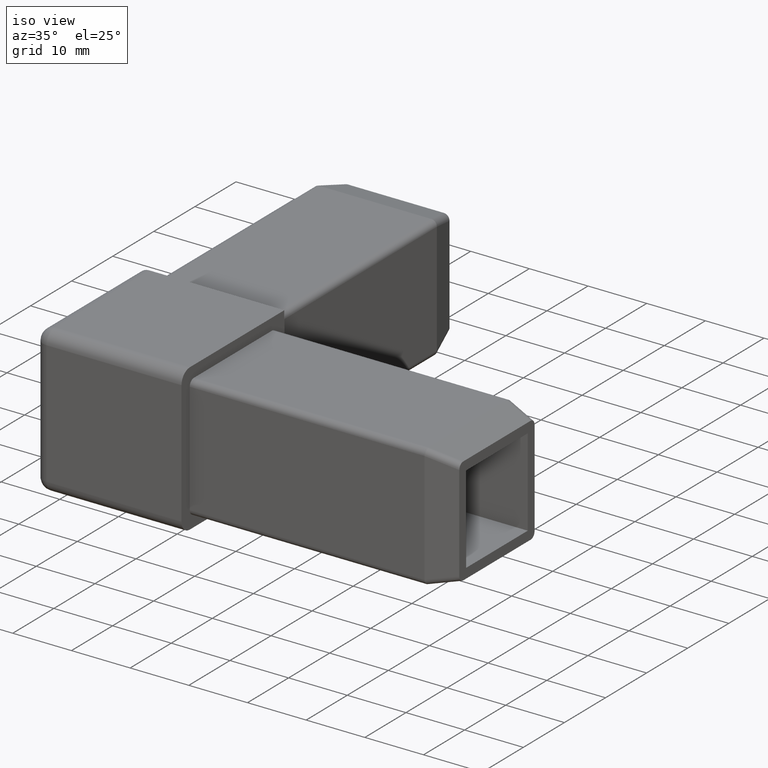
[diagram: clean part render]
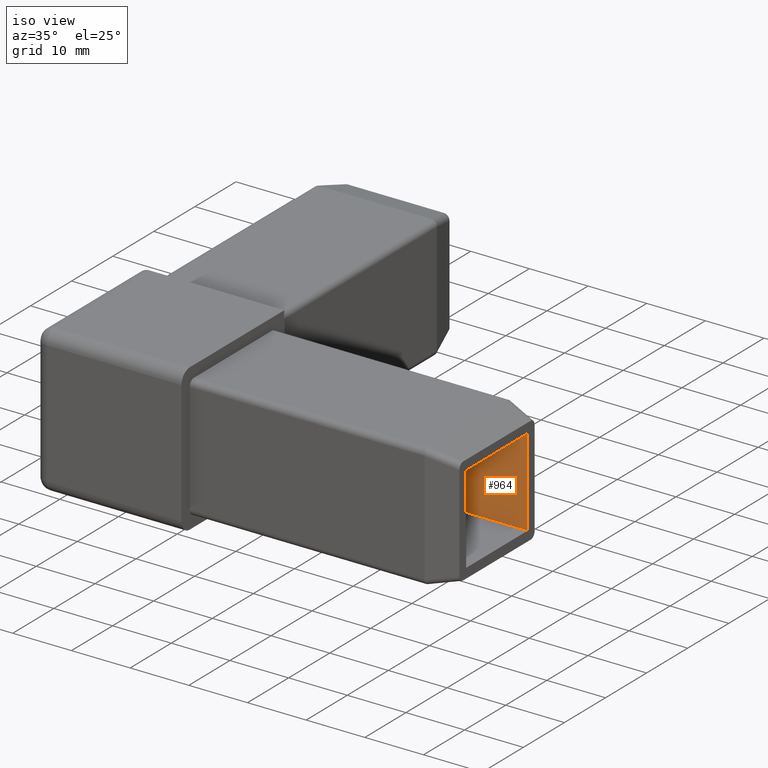
[diagram: same view with one face highlighted and labeled with its STEP entity id]
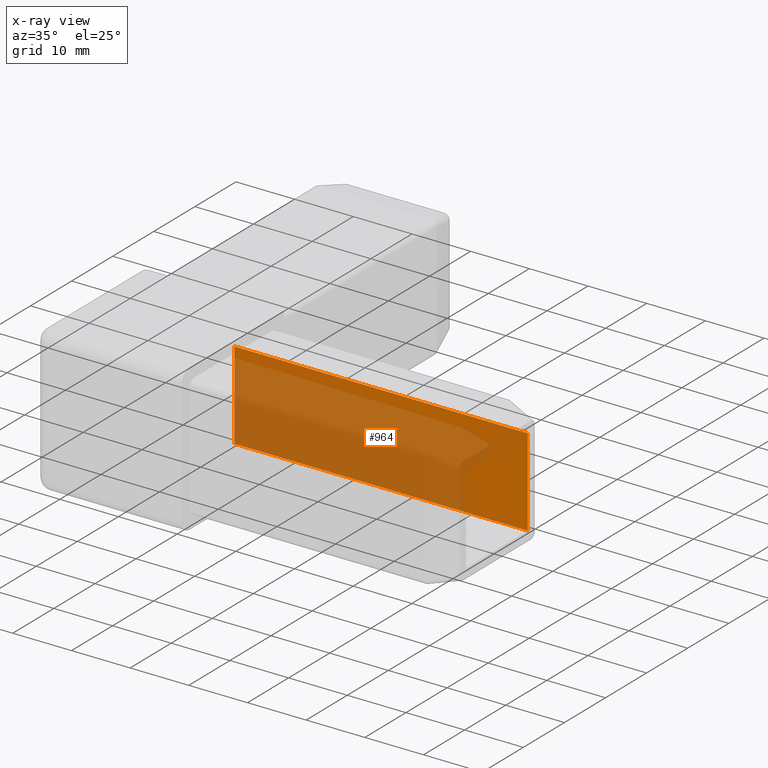
[diagram: x-ray of the same camera — body ghosted, the highlighted face saturated]
A machine part, iso view. The second image highlights one B-rep face of the part: STEP entity #964.
The next image is the same camera in x-ray: the body ghosted, the highlighted face saturated — about 71% of this face is hidden behind the body in this view.
In plain terms, the highlighted planar face has unit normal (0, 1, 0).
Its self-contained STEP definition (entity closure, byte-faithful):
#99=FACE_OUTER_BOUND('',#154,.T.);
#154=EDGE_LOOP('',(#666,#667,#668,#669,#670));
#214=LINE('',#1446,#309);
#217=LINE('',#1451,#312);
#222=LINE('',#1460,#317);
#224=LINE('',#1465,#319);
#227=LINE('',#1470,#322);
#309=VECTOR('',#1135,8.49999999999997);
#312=VECTOR('',#1140,50.);
#317=VECTOR('',#1147,6.50000000000004);
#319=VECTOR('',#1151,50.);
#322=VECTOR('',#1158,15.);
#401=VERTEX_POINT('',#1439);
#403=VERTEX_POINT('',#1445);
#404=VERTEX_POINT('',#1450);
#407=VERTEX_POINT('',#1458);
#408=VERTEX_POINT('',#1462);
#498=EDGE_CURVE('',#401,#403,#214,.T.);
#501=EDGE_CURVE('',#403,#404,#217,.T.);
#506=EDGE_CURVE('',#407,#401,#222,.T.);
#508=EDGE_CURVE('',#407,#408,#224,.T.);
#511=EDGE_CURVE('',#404,#408,#227,.T.);
#666=ORIENTED_EDGE('',*,*,#511,.F.);
#667=ORIENTED_EDGE('',*,*,#501,.F.);
#668=ORIENTED_EDGE('',*,*,#498,.F.);
#669=ORIENTED_EDGE('',*,*,#506,.F.);
#670=ORIENTED_EDGE('',*,*,#508,.T.);
#932=PLANE('',#1021);
#964=ADVANCED_FACE('',(#99),#932,.F.);
#1021=AXIS2_PLACEMENT_3D('',#1469,#1156,#1157);
#1135=DIRECTION('',(-2.09463867609825E-16,-2.96059473233375E-16,1.));
#1140=DIRECTION('',(1.,0.,0.));
#1147=DIRECTION('',(-2.09463867609825E-16,-2.96059473233375E-16,1.));
#1151=DIRECTION('',(1.,0.,0.));
#1156=DIRECTION('center_axis',(0.,1.,2.96059473233375E-16));
#1157=DIRECTION('ref_axis',(0.,-2.66453525910038E-16,1.));
#1158=DIRECTION('',(0.,2.96059473233375E-16,-1.));
#1439=CARTESIAN_POINT('',(7.50000000000002,7.50000000000003,11.5));
#1445=CARTESIAN_POINT('',(7.49999999999998,7.5,20.));
#1446=CARTESIAN_POINT('',(7.49999999999998,7.5,16.25));
#1450=CARTESIAN_POINT('',(57.5,7.5,20.));
#1451=CARTESIAN_POINT('',(12.5,7.5,20.));
#1458=CARTESIAN_POINT('',(7.49999999999999,7.5,5.));
#1460=CARTESIAN_POINT('',(7.49999999999998,7.5,16.25));
#1462=CARTESIAN_POINT('',(57.5,7.5,5.));
#1465=CARTESIAN_POINT('',(12.5,7.5,5.));
#1469=CARTESIAN_POINT('Origin',(12.5,7.5,5.));
#1470=CARTESIAN_POINT('',(57.5,7.5,8.75));